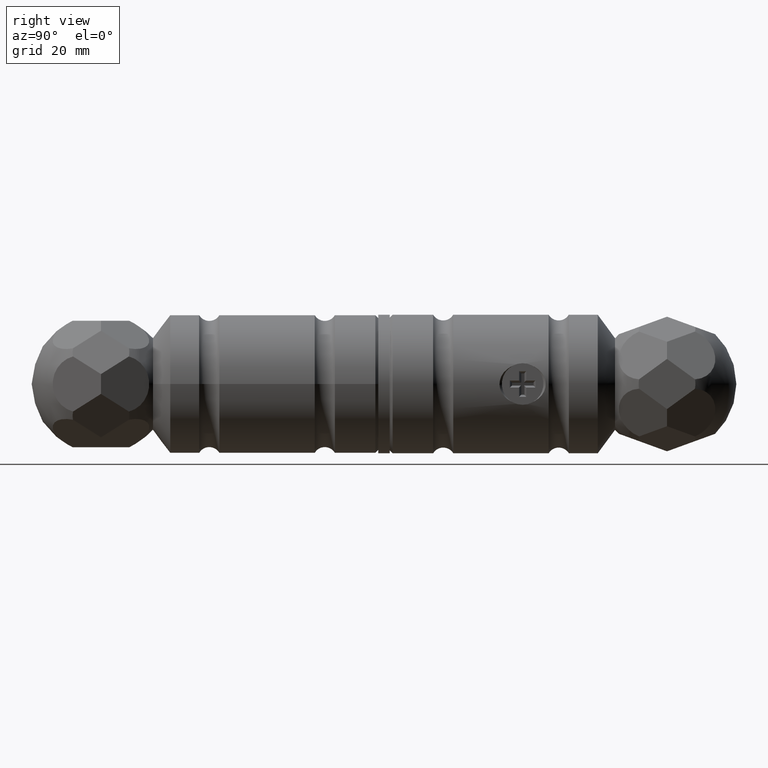
[diagram: clean part render]
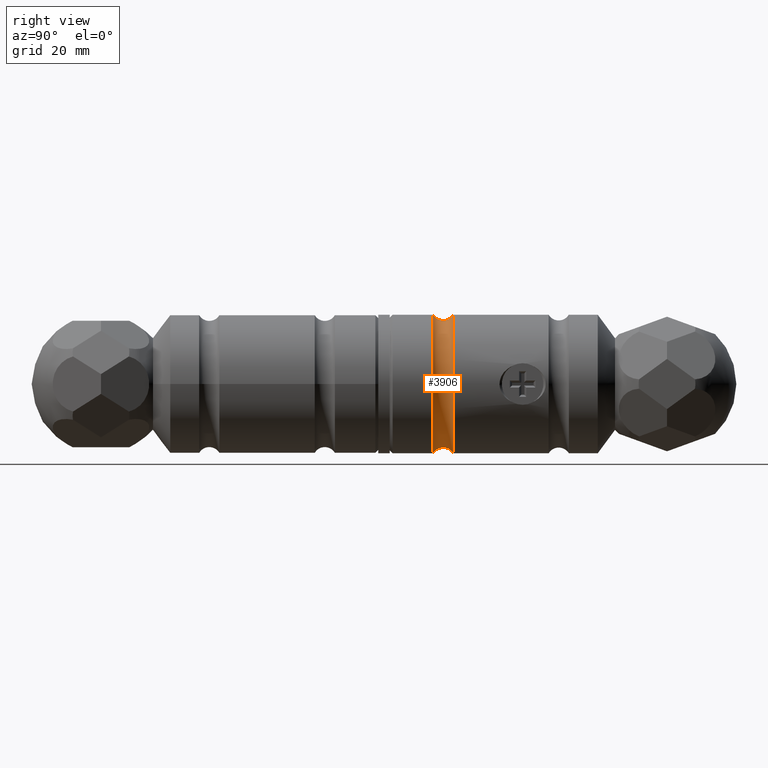
[diagram: same view with one face highlighted and labeled with its STEP entity id]
A machine part, right view. The second image highlights one B-rep face of the part: STEP entity #3906.
In plain terms, the highlighted toroidal blend (fillet) surface has major radius 13.0313 mm and minor (blend) radius 2.0312 mm.
Its self-contained STEP definition (entity closure, byte-faithful):
#296 = CARTESIAN_POINT ( 'NONE',  ( 3.585566485045670703E-17, 7.500000000000007105, -1.203706215242022408E-32 ) ) ;
#1080 = EDGE_CURVE ( 'NONE', #4067, #4067, #5061, .T. ) ;
#1214 = CARTESIAN_POINT ( 'NONE',  ( 5.258830844736310716E-17, 10.99999999999999645, -2.407412430484044816E-32 ) ) ;
#1598 = TOROIDAL_SURFACE ( 'NONE', #11407, 13.03125000000000178, 2.031249999999998224 ) ;
#2377 = EDGE_LOOP ( 'NONE', ( #3326 ) ) ;
#2592 = CARTESIAN_POINT ( 'NONE',  ( 12.00000000000000533, 10.99999999999999645, -2.407412430484044816E-32 ) ) ;
#3248 = DIRECTION ( 'NONE',  ( -4.780755313394433037E-18, -1.000000000000000000, 7.014492007759772441E-34 ) ) ;
#3326 = ORIENTED_EDGE ( 'NONE', *, *, #7028, .F. ) ;
#3895 = CIRCLE ( 'NONE', #6281, 12.00000000000000355 ) ;
#3906 = ADVANCED_FACE ( 'NONE', ( #7715, #5551 ), #1598, .F. ) ;
#4067 = VERTEX_POINT ( 'NONE', #2592 ) ;
#4257 = DIRECTION ( 'NONE',  ( -4.780755313394433037E-18, -1.000000000000000000, 7.014492007759772441E-34 ) ) ;
#5061 = CIRCLE ( 'NONE', #7520, 12.00000000000000533 ) ;
#5290 = DIRECTION ( 'NONE',  ( 1.000000000000000000, 0.000000000000000000, 0.000000000000000000 ) ) ;
#5551 = FACE_OUTER_BOUND ( 'NONE', #2377, .T. ) ;
#6281 = AXIS2_PLACEMENT_3D ( 'NONE', #296, #4257, #5290 ) ;
#7028 = EDGE_CURVE ( 'NONE', #11416, #11416, #3895, .T. ) ;
#7520 = AXIS2_PLACEMENT_3D ( 'NONE', #1214, #10468, #9486 ) ;
#7715 = FACE_OUTER_BOUND ( 'NONE', #12264, .T. ) ;
#8409 = ORIENTED_EDGE ( 'NONE', *, *, #1080, .T. ) ;
#9081 = CARTESIAN_POINT ( 'NONE',  ( 1.232595164407830946E-29, 9.249999999999994671, 1.925929944387235853E-31 ) ) ;
#9486 = DIRECTION ( 'NONE',  ( 1.000000000000000000, 0.000000000000000000, 0.000000000000000000 ) ) ;
#10468 = DIRECTION ( 'NONE',  ( -4.780755313394433037E-18, -1.000000000000000000, 7.014492007759772441E-34 ) ) ;
#10876 = CARTESIAN_POINT ( 'NONE',  ( 12.00000000000000355, 7.500000000000007105, -1.203706215242022408E-32 ) ) ;
#11407 = AXIS2_PLACEMENT_3D ( 'NONE', #9081, #3248, #12471 ) ;
#11416 = VERTEX_POINT ( 'NONE', #10876 ) ;
#12264 = EDGE_LOOP ( 'NONE', ( #8409 ) ) ;
#12471 = DIRECTION ( 'NONE',  ( 1.000000000000000000, -4.780755313394433037E-18, 3.353456993686031164E-51 ) ) ;